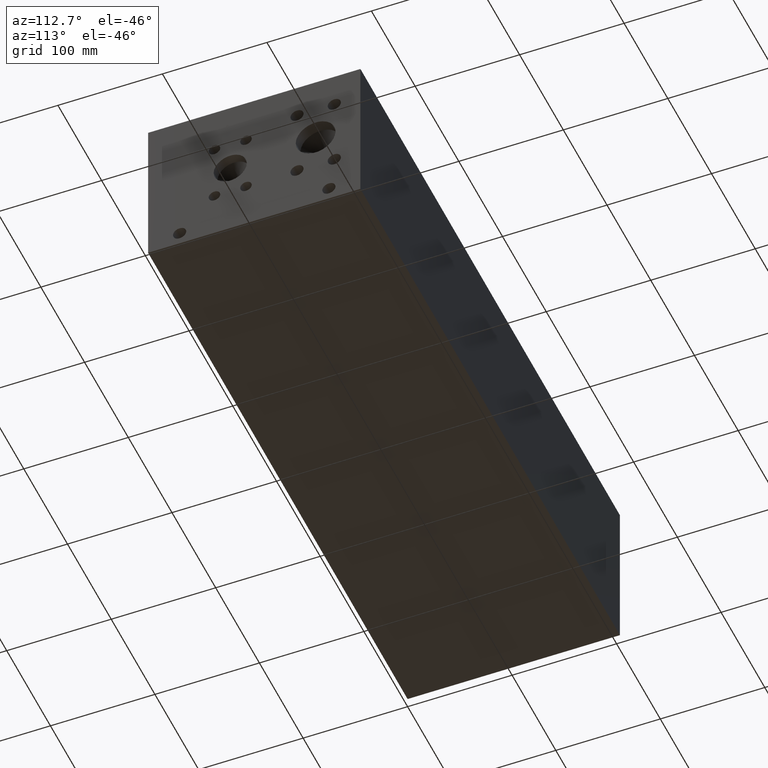
[diagram: clean part render]
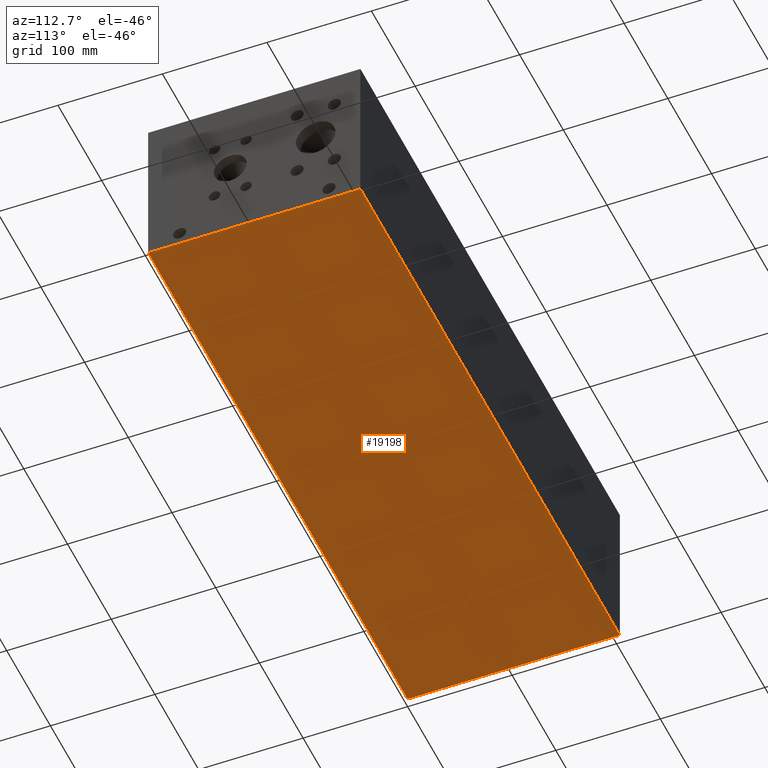
[diagram: same view with one face highlighted and labeled with its STEP entity id]
A machine part, auxiliary view. The second image highlights one B-rep face of the part: STEP entity #19198.
In plain terms, the highlighted planar face has unit normal (0, 0, 1).
Its self-contained STEP definition (entity closure, byte-faithful):
#2865=FACE_OUTER_BOUND('',#4131,.T.);
#4131=EDGE_LOOP('',(#17140,#17141,#17142,#17143));
#4165=LINE('',#25607,#5734);
#4561=LINE('',#27532,#6130);
#4620=LINE('',#27836,#6189);
#5699=LINE('',#33420,#7268);
#5734=VECTOR('',#20858,10.);
#6130=VECTOR('',#21524,10.);
#6189=VECTOR('',#21669,10.);
#7268=VECTOR('',#25526,10.);
#7292=VERTEX_POINT('',#25605);
#7293=VERTEX_POINT('',#25606);
#7839=VERTEX_POINT('',#27531);
#7913=VERTEX_POINT('',#27835);
#9215=EDGE_CURVE('',#7292,#7293,#4165,.T.);
#9837=EDGE_CURVE('',#7293,#7839,#4561,.T.);
#9936=EDGE_CURVE('',#7913,#7292,#4620,.T.);
#11834=EDGE_CURVE('',#7839,#7913,#5699,.T.);
#17140=ORIENTED_EDGE('',*,*,#9215,.F.);
#17141=ORIENTED_EDGE('',*,*,#9936,.F.);
#17142=ORIENTED_EDGE('',*,*,#11834,.F.);
#17143=ORIENTED_EDGE('',*,*,#9837,.F.);
#17643=PLANE('',#20796);
#19198=ADVANCED_FACE('',(#2865),#17643,.F.);
#20796=AXIS2_PLACEMENT_3D('',#33425,#25534,#25535);
#20858=DIRECTION('',(1.,0.,0.));
#21524=DIRECTION('',(0.,1.,0.));
#21669=DIRECTION('',(0.,-1.,0.));
#25526=DIRECTION('',(-1.,0.,0.));
#25534=DIRECTION('center_axis',(0.,0.,1.));
#25535=DIRECTION('ref_axis',(1.,0.,0.));
#25605=CARTESIAN_POINT('',(0.,0.,0.));
#25606=CARTESIAN_POINT('',(593.725,0.,0.));
#25607=CARTESIAN_POINT('',(0.,0.,0.));
#27531=CARTESIAN_POINT('',(593.725,203.2,0.));
#27532=CARTESIAN_POINT('',(593.725,0.,0.));
#27835=CARTESIAN_POINT('',(0.,203.2,0.));
#27836=CARTESIAN_POINT('',(0.,203.2,0.));
#33420=CARTESIAN_POINT('',(593.725,203.2,0.));
#33425=CARTESIAN_POINT('Origin',(296.8625,101.6,0.));